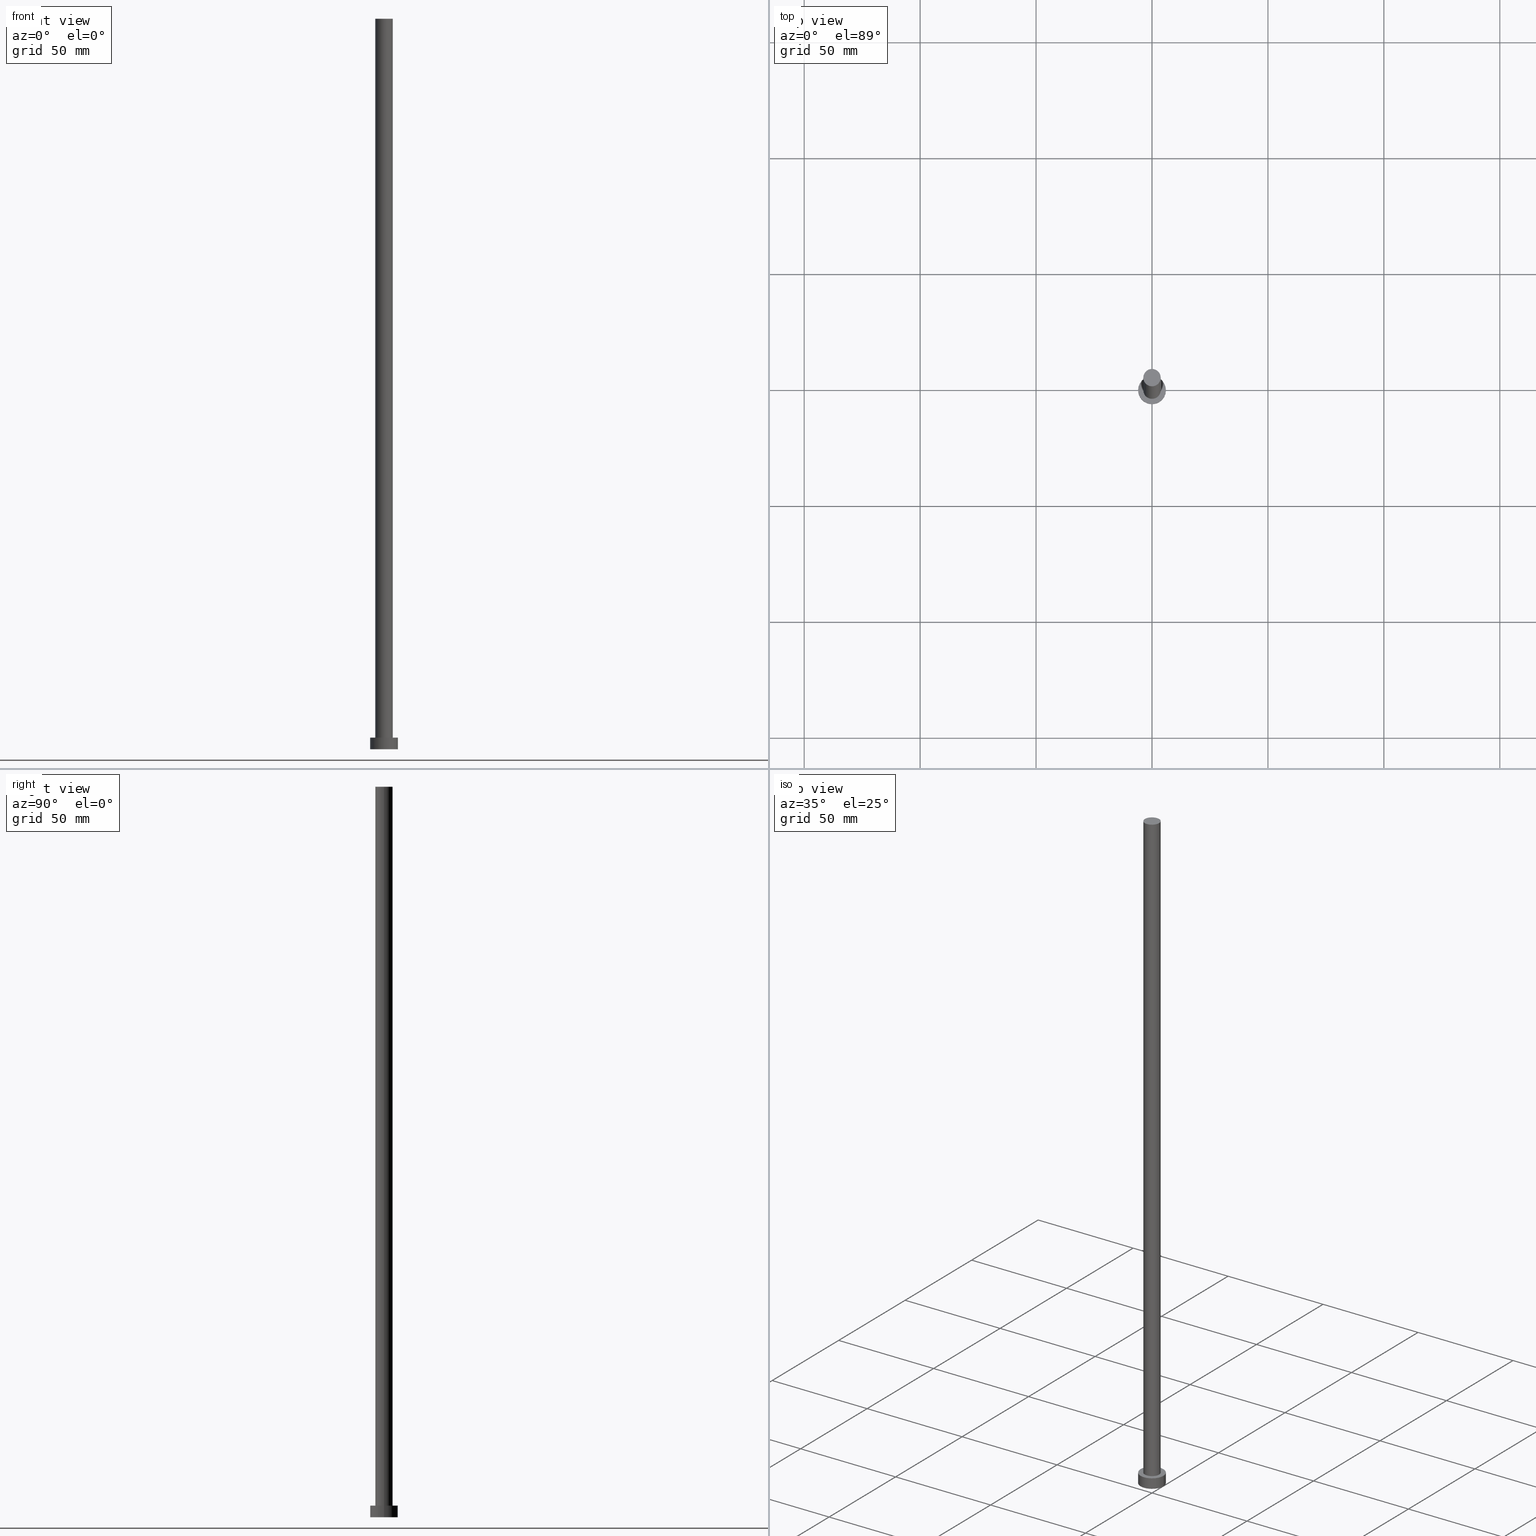
[diagram: canonical four-view strip — front | top / right | iso, engineering-drawing reading convention]
A machine part, canonical four-view strip (front | top / right | iso — engineering-drawing reading convention). The complete STEP part file that produces these views, byte-faithful:
ISO-10303-21;
HEADER;
FILE_DESCRIPTION (( 'STEP AP203' ),
    '1' );
FILE_NAME ('d177.STEP',
    '2023-02-12T11:21:20',
    ( '' ),
    ( '' ),
    'SwSTEP 2.0',
    'SolidWorks 2019',
    '' );
FILE_SCHEMA (( 'CONFIG_CONTROL_DESIGN' ));
ENDSEC;

DATA;
#1 = PERSON_AND_ORGANIZATION ( #26, #61 ) ;
#2 = DATE_AND_TIME ( #98, #172 ) ;
#3 = DIRECTION ( 'NONE',  ( 1.000000000000000000, 0.000000000000000000, 0.000000000000000000 ) ) ;
#4 = DIRECTION ( 'NONE',  ( 0.000000000000000000, 0.000000000000000000, 1.000000000000000000 ) ) ;
#5 = ADVANCED_FACE ( 'NONE', ( #38 ), #96, .F. ) ;
#6 = PLANE ( 'NONE',  #45 ) ;
#7 = ORIENTED_EDGE ( 'NONE', *, *, #240, .F. ) ;
#8 = EDGE_LOOP ( 'NONE', ( #93, #166 ) ) ;
#9 = VECTOR ( 'NONE', #217, 1000.000000000000000 ) ;
#10 = CARTESIAN_POINT ( 'NONE',  ( -6.000000000000000888, 0.000000000000000000, 5.000000000000000000 ) ) ;
#11 = ORIENTED_EDGE ( 'NONE', *, *, #201, .T. ) ;
#12 = DIRECTION ( 'NONE',  ( 0.000000000000000000, 0.000000000000000000, 1.000000000000000000 ) ) ;
#13 = CIRCLE ( 'NONE', #158, 6.000000000000000888 ) ;
#14 =( GEOMETRIC_REPRESENTATION_CONTEXT ( 3 ) GLOBAL_UNCERTAINTY_ASSIGNED_CONTEXT ( ( #71 ) ) GLOBAL_UNIT_ASSIGNED_CONTEXT ( ( #249, #131, #78 ) ) REPRESENTATION_CONTEXT ( 'NONE', 'WORKASPACE' ) );
#15 = EDGE_CURVE ( 'NONE', #247, #187, #219, .T. ) ;
#16 = CARTESIAN_POINT ( 'NONE',  ( -3.750000000000000000, 0.000000000000000000, 315.0000000000000000 ) ) ;
#17 = COORDINATED_UNIVERSAL_TIME_OFFSET ( 1, 0, .AHEAD. ) ;
#18 = PERSON_AND_ORGANIZATION_ROLE ( 'creator' ) ;
#19 = CARTESIAN_POINT ( 'NONE',  ( 0.000000000000000000, 0.000000000000000000, 5.000000000000000000 ) ) ;
#20 = SECURITY_CLASSIFICATION_LEVEL ( 'unclassified' ) ;
#21 = ORIENTED_EDGE ( 'NONE', *, *, #101, .F. ) ;
#22 = CARTESIAN_POINT ( 'NONE',  ( 0.000000000000000000, 0.000000000000000000, 5.000000000000000000 ) ) ;
#23 = VECTOR ( 'NONE', #75, 1000.000000000000000 ) ;
#24 = EDGE_CURVE ( 'NONE', #54, #187, #113, .T. ) ;
#25 = ORIENTED_EDGE ( 'NONE', *, *, #136, .T. ) ;
#26 = PERSON ( 'NEUR�EN�', 'NEUR�EN�', 'NEUR�EN�', ('NEUR�EN�'), ('NEUR�EN�'), ('NEUR�EN�') ) ;
#27 = LOCAL_TIME ( 12, 21, 20.00000000000000000, #85 ) ;
#28 = APPROVAL_STATUS ( 'not_yet_approved' ) ;
#29 = ORIENTED_EDGE ( 'NONE', *, *, #236, .T. ) ;
#30 = FACE_OUTER_BOUND ( 'NONE', #129, .T. ) ;
#31 = EDGE_LOOP ( 'NONE', ( #21, #140 ) ) ;
#32 = DIRECTION ( 'NONE',  ( 0.000000000000000000, 0.000000000000000000, 1.000000000000000000 ) ) ;
#33 = DIRECTION ( 'NONE',  ( 0.000000000000000000, 0.000000000000000000, 1.000000000000000000 ) ) ;
#34 = DATE_AND_TIME ( #200, #242 ) ;
#35 = APPROVAL_DATE_TIME ( #60, #73 ) ;
#36 = APPROVAL_PERSON_ORGANIZATION ( #1, #73, #159 ) ;
#37 = DIRECTION ( 'NONE',  ( 0.000000000000000000, 0.000000000000000000, 1.000000000000000000 ) ) ;
#38 = FACE_OUTER_BOUND ( 'NONE', #8, .T. ) ;
#39 = PERSON_AND_ORGANIZATION_ROLE ( 'classification_officer' ) ;
#40 = CC_DESIGN_PERSON_AND_ORGANIZATION_ASSIGNMENT ( #138, #39, ( #190 ) ) ;
#41 = ORIENTED_EDGE ( 'NONE', *, *, #240, .T. ) ;
#42 = PRODUCT ( 'd177', 'd177', '', ( #53 ) ) ;
#43 = DIRECTION ( 'NONE',  ( -0.000000000000000000, -0.000000000000000000, -1.000000000000000000 ) ) ;
#44 = AXIS2_PLACEMENT_3D ( 'NONE', #91, #77, #151 ) ;
#45 = AXIS2_PLACEMENT_3D ( 'NONE', #183, #87, #124 ) ;
#46 = CARTESIAN_POINT ( 'NONE',  ( 0.000000000000000000, 0.000000000000000000, 5.000000000000000000 ) ) ;
#47 = APPLICATION_CONTEXT ( 'configuration controlled 3d designs of mechanical parts and assemblies' ) ;
#48 = CARTESIAN_POINT ( 'NONE',  ( 6.000000000000000888, 7.347880794884120722E-16, 5.000000000000000000 ) ) ;
#49 = ORIENTED_EDGE ( 'NONE', *, *, #199, .T. ) ;
#50 = ORIENTED_EDGE ( 'NONE', *, *, #123, .F. ) ;
#51 = ORIENTED_EDGE ( 'NONE', *, *, #15, .T. ) ;
#52 = EDGE_CURVE ( 'NONE', #54, #191, #76, .T. ) ;
#53 = MECHANICAL_CONTEXT ( 'NONE', #47, 'mechanical' ) ;
#54 = VERTEX_POINT ( 'NONE', #16 ) ;
#55 = CLOSED_SHELL ( 'NONE', ( #221, #215, #162, #118, #5, #227, #127 ) ) ;
#56 = DIRECTION ( 'NONE',  ( 1.000000000000000000, 0.000000000000000000, -0.000000000000000000 ) ) ;
#57 = CC_DESIGN_DATE_AND_TIME_ASSIGNMENT ( #100, #178, ( #190 ) ) ;
#58 = CYLINDRICAL_SURFACE ( 'NONE', #254, 3.750000000000000000 ) ;
#59 = CARTESIAN_POINT ( 'NONE',  ( 6.000000000000000888, 7.347880794884120722E-16, 5.000000000000000000 ) ) ;
#60 = DATE_AND_TIME ( #239, #27 ) ;
#61 = ORGANIZATION ( 'NEUR�EN�', 'NEUR�EN�', '' ) ;
#62 = PRODUCT_RELATED_PRODUCT_CATEGORY ( 'detail', '', ( #42 ) ) ;
#63 = EDGE_LOOP ( 'NONE', ( #255, #41 ) ) ;
#64 = DIRECTION ( 'NONE',  ( 0.000000000000000000, 0.000000000000000000, 1.000000000000000000 ) ) ;
#65 = DIRECTION ( 'NONE',  ( 1.000000000000000000, 0.000000000000000000, 0.000000000000000000 ) ) ;
#66 = DIRECTION ( 'NONE',  ( 1.000000000000000000, 0.000000000000000000, -0.000000000000000000 ) ) ;
#67 = FACE_OUTER_BOUND ( 'NONE', #148, .T. ) ;
#68 = APPROVAL_PERSON_ORGANIZATION ( #119, #106, #141 ) ;
#69 = AXIS2_PLACEMENT_3D ( 'NONE', #224, #37, #66 ) ;
#70 = CARTESIAN_POINT ( 'NONE',  ( 0.000000000000000000, 0.000000000000000000, 315.0000000000000000 ) ) ;
#71 = UNCERTAINTY_MEASURE_WITH_UNIT (LENGTH_MEASURE( 1.000000000000000082E-05 ), #249, 'distance_accuracy_value', 'NONE');
#72 = CIRCLE ( 'NONE', #114, 6.000000000000000888 ) ;
#73 = APPROVAL ( #230, 'NEUR�EN�' ) ;
#74 = CARTESIAN_POINT ( 'NONE',  ( 0.000000000000000000, 0.000000000000000000, 0.000000000000000000 ) ) ;
#75 = DIRECTION ( 'NONE',  ( -0.000000000000000000, -0.000000000000000000, -1.000000000000000000 ) ) ;
#76 = CIRCLE ( 'NONE', #82, 3.750000000000000000 ) ;
#77 = DIRECTION ( 'NONE',  ( 0.000000000000000000, 0.000000000000000000, 1.000000000000000000 ) ) ;
#78 =( NAMED_UNIT ( * ) SI_UNIT ( $, .STERADIAN. ) SOLID_ANGLE_UNIT ( ) );
#79 = LINE ( 'NONE', #59, #137 ) ;
#80 = CALENDAR_DATE ( 2023, 12, 2 ) ;
#81 = CC_DESIGN_APPROVAL ( #132, ( #179 ) ) ;
#82 = AXIS2_PLACEMENT_3D ( 'NONE', #170, #32, #196 ) ;
#83 = ADVANCED_BREP_SHAPE_REPRESENTATION ( 'd177', ( #177, #145 ), #14 ) ;
#84 = LINE ( 'NONE', #157, #195 ) ;
#85 = COORDINATED_UNIVERSAL_TIME_OFFSET ( 1, 0, .AHEAD. ) ;
#86 = CC_DESIGN_SECURITY_CLASSIFICATION ( #190, ( #164 ) ) ;
#87 = DIRECTION ( 'NONE',  ( 0.000000000000000000, 0.000000000000000000, 1.000000000000000000 ) ) ;
#88 = CARTESIAN_POINT ( 'NONE',  ( 0.000000000000000000, 0.000000000000000000, 0.000000000000000000 ) ) ;
#89 = ORIENTED_EDGE ( 'NONE', *, *, #136, .F. ) ;
#90 = PLANE ( 'NONE',  #69 ) ;
#91 = CARTESIAN_POINT ( 'NONE',  ( 0.000000000000000000, 0.000000000000000000, 315.0000000000000000 ) ) ;
#92 = CC_DESIGN_PERSON_AND_ORGANIZATION_ASSIGNMENT ( #175, #18, ( #164 ) ) ;
#93 = ORIENTED_EDGE ( 'NONE', *, *, #209, .F. ) ;
#94 = ORIENTED_EDGE ( 'NONE', *, *, #24, .F. ) ;
#95 = CARTESIAN_POINT ( 'NONE',  ( 0.000000000000000000, 0.000000000000000000, 315.0000000000000000 ) ) ;
#96 = PLANE ( 'NONE',  #173 ) ;
#97 = DIRECTION ( 'NONE',  ( -1.000000000000000000, 0.000000000000000000, 0.000000000000000000 ) ) ;
#98 = CALENDAR_DATE ( 2023, 12, 2 ) ;
#99 = EDGE_CURVE ( 'NONE', #235, #107, #79, .T. ) ;
#100 = DATE_AND_TIME ( #102, #160 ) ;
#101 = EDGE_CURVE ( 'NONE', #187, #247, #128, .T. ) ;
#102 = CALENDAR_DATE ( 2023, 12, 2 ) ;
#103 = CARTESIAN_POINT ( 'NONE',  ( -3.750000000000000000, 0.000000000000000000, 5.000000000000000000 ) ) ;
#104 = CC_DESIGN_DATE_AND_TIME_ASSIGNMENT ( #2, #171, ( #179 ) ) ;
#105 = FACE_BOUND ( 'NONE', #31, .T. ) ;
#106 = APPROVAL ( #252, 'NEUR�EN�' ) ;
#107 = VERTEX_POINT ( 'NONE', #139 ) ;
#108 = AXIS2_PLACEMENT_3D ( 'NONE', #46, #208, #165 ) ;
#109 = APPROVAL_ROLE ( '' ) ;
#110 = FACE_OUTER_BOUND ( 'NONE', #122, .T. ) ;
#111 = ORIENTED_EDGE ( 'NONE', *, *, #101, .T. ) ;
#112 = DESIGN_CONTEXT ( 'detailed design', #205, 'design' ) ;
#113 = LINE ( 'NONE', #153, #9 ) ;
#114 = AXIS2_PLACEMENT_3D ( 'NONE', #88, #4, #65 ) ;
#115 = AXIS2_PLACEMENT_3D ( 'NONE', #22, #43, #203 ) ;
#116 = APPROVAL_PERSON_ORGANIZATION ( #210, #132, #109 ) ;
#117 = PERSON_AND_ORGANIZATION_ROLE ( 'design_owner' ) ;
#118 = ADVANCED_FACE ( 'NONE', ( #105, #182 ), #6, .T. ) ;
#119 = PERSON_AND_ORGANIZATION ( #26, #61 ) ;
#120 = SHAPE_DEFINITION_REPRESENTATION ( #229, #83 ) ;
#121 = CYLINDRICAL_SURFACE ( 'NONE', #115, 6.000000000000000888 ) ;
#122 = EDGE_LOOP ( 'NONE', ( #225, #193, #143, #111 ) ) ;
#123 = EDGE_CURVE ( 'NONE', #231, #235, #13, .T. ) ;
#124 = DIRECTION ( 'NONE',  ( 1.000000000000000000, 0.000000000000000000, -0.000000000000000000 ) ) ;
#125 = CARTESIAN_POINT ( 'NONE',  ( -6.000000000000000888, 0.000000000000000000, 0.000000000000000000 ) ) ;
#126 = EDGE_LOOP ( 'NONE', ( #212, #50, #29, #149 ) ) ;
#127 = ADVANCED_FACE ( 'NONE', ( #244 ), #90, .T. ) ;
#128 = CIRCLE ( 'NONE', #155, 3.750000000000000000 ) ;
#129 = EDGE_LOOP ( 'NONE', ( #7, #49, #51, #94 ) ) ;
#130 = PERSON_AND_ORGANIZATION ( #26, #61 ) ;
#131 =( NAMED_UNIT ( * ) PLANE_ANGLE_UNIT ( ) SI_UNIT ( $, .RADIAN. ) );
#132 = APPROVAL ( #28, 'NEUR�EN�' ) ;
#133 = DIRECTION ( 'NONE',  ( -0.000000000000000000, -0.000000000000000000, -1.000000000000000000 ) ) ;
#134 = PERSON_AND_ORGANIZATION ( #26, #61 ) ;
#135 = APPROVAL_DATE_TIME ( #34, #106 ) ;
#136 = EDGE_CURVE ( 'NONE', #235, #231, #189, .T. ) ;
#137 = VECTOR ( 'NONE', #133, 1000.000000000000000 ) ;
#138 = PERSON_AND_ORGANIZATION ( #26, #61 ) ;
#139 = CARTESIAN_POINT ( 'NONE',  ( 6.000000000000000888, 7.347880794884120722E-16, 0.000000000000000000 ) ) ;
#140 = ORIENTED_EDGE ( 'NONE', *, *, #15, .F. ) ;
#141 = APPROVAL_ROLE ( '' ) ;
#142 = FACE_OUTER_BOUND ( 'NONE', #126, .T. ) ;
#143 = ORIENTED_EDGE ( 'NONE', *, *, #24, .T. ) ;
#144 = DIRECTION ( 'NONE',  ( 0.000000000000000000, 0.000000000000000000, 1.000000000000000000 ) ) ;
#145 = AXIS2_PLACEMENT_3D ( 'NONE', #74, #218, #248 ) ;
#146 = DIRECTION ( 'NONE',  ( 0.000000000000000000, 0.000000000000000000, 1.000000000000000000 ) ) ;
#147 = CC_DESIGN_PERSON_AND_ORGANIZATION_ASSIGNMENT ( #156, #228, ( #164 ) ) ;
#148 = EDGE_LOOP ( 'NONE', ( #89, #243, #11, #167 ) ) ;
#149 = ORIENTED_EDGE ( 'NONE', *, *, #209, .T. ) ;
#150 = CC_DESIGN_PERSON_AND_ORGANIZATION_ASSIGNMENT ( #134, #220, ( #179 ) ) ;
#151 = DIRECTION ( 'NONE',  ( 1.000000000000000000, 0.000000000000000000, 0.000000000000000000 ) ) ;
#152 = DIRECTION ( 'NONE',  ( -0.000000000000000000, -0.000000000000000000, -1.000000000000000000 ) ) ;
#153 = CARTESIAN_POINT ( 'NONE',  ( -3.750000000000000000, 0.000000000000000000, 315.0000000000000000 ) ) ;
#154 = COORDINATED_UNIVERSAL_TIME_OFFSET ( 1, 0, .AHEAD. ) ;
#155 = AXIS2_PLACEMENT_3D ( 'NONE', #253, #64, #180 ) ;
#156 = PERSON_AND_ORGANIZATION ( #26, #61 ) ;
#157 = CARTESIAN_POINT ( 'NONE',  ( 3.750000000000000000, 4.592425496802573972E-16, 315.0000000000000000 ) ) ;
#158 = AXIS2_PLACEMENT_3D ( 'NONE', #184, #232, #3 ) ;
#159 = APPROVAL_ROLE ( '' ) ;
#160 = LOCAL_TIME ( 12, 21, 20.00000000000000000, #154 ) ;
#161 = DIRECTION ( 'NONE',  ( 1.000000000000000000, 0.000000000000000000, 0.000000000000000000 ) ) ;
#162 = ADVANCED_FACE ( 'NONE', ( #142 ), #121, .T. ) ;
#163 = CARTESIAN_POINT ( 'NONE',  ( 0.000000000000000000, 0.000000000000000000, 0.000000000000000000 ) ) ;
#164 = PRODUCT_DEFINITION_FORMATION_WITH_SPECIFIED_SOURCE ( 'LIBOVOLN�', '', #42, .NOT_KNOWN. ) ;
#165 = DIRECTION ( 'NONE',  ( -1.000000000000000000, 0.000000000000000000, 0.000000000000000000 ) ) ;
#166 = ORIENTED_EDGE ( 'NONE', *, *, #201, .F. ) ;
#167 = ORIENTED_EDGE ( 'NONE', *, *, #236, .F. ) ;
#168 = AXIS2_PLACEMENT_3D ( 'NONE', #70, #152, #216 ) ;
#169 = DIRECTION ( 'NONE',  ( -0.000000000000000000, -0.000000000000000000, -1.000000000000000000 ) ) ;
#170 = CARTESIAN_POINT ( 'NONE',  ( 0.000000000000000000, 0.000000000000000000, 315.0000000000000000 ) ) ;
#171 = DATE_TIME_ROLE ( 'creation_date' ) ;
#172 = LOCAL_TIME ( 12, 21, 20.00000000000000000, #223 ) ;
#173 = AXIS2_PLACEMENT_3D ( 'NONE', #250, #33, #56 ) ;
#174 = COORDINATED_UNIVERSAL_TIME_OFFSET ( 1, 0, .AHEAD. ) ;
#175 = PERSON_AND_ORGANIZATION ( #26, #61 ) ;
#176 = CARTESIAN_POINT ( 'NONE',  ( 3.750000000000000000, 4.592425496802573972E-16, 315.0000000000000000 ) ) ;
#177 = MANIFOLD_SOLID_BREP ( 'P�idat vysunut�m3', #55 ) ;
#178 = DATE_TIME_ROLE ( 'classification_date' ) ;
#179 = PRODUCT_DEFINITION ( 'NEZN�M�', '', #164, #112 ) ;
#180 = DIRECTION ( 'NONE',  ( 1.000000000000000000, 0.000000000000000000, 0.000000000000000000 ) ) ;
#181 = CIRCLE ( 'NONE', #233, 6.000000000000000888 ) ;
#182 = FACE_OUTER_BOUND ( 'NONE', #214, .T. ) ;
#183 = CARTESIAN_POINT ( 'NONE',  ( 0.000000000000000000, 0.000000000000000000, 5.000000000000000000 ) ) ;
#184 = CARTESIAN_POINT ( 'NONE',  ( 0.000000000000000000, 0.000000000000000000, 5.000000000000000000 ) ) ;
#185 = AXIS2_PLACEMENT_3D ( 'NONE', #213, #12, #198 ) ;
#186 = APPLICATION_PROTOCOL_DEFINITION ( 'international standard', 'config_control_design', 1994, #47 ) ;
#187 = VERTEX_POINT ( 'NONE', #103 ) ;
#188 = LOCAL_TIME ( 12, 21, 20.00000000000000000, #17 ) ;
#189 = CIRCLE ( 'NONE', #211, 6.000000000000000888 ) ;
#190 = SECURITY_CLASSIFICATION ( '', '', #20 ) ;
#191 = VERTEX_POINT ( 'NONE', #176 ) ;
#192 = CC_DESIGN_PERSON_AND_ORGANIZATION_ASSIGNMENT ( #130, #117, ( #42 ) ) ;
#193 = ORIENTED_EDGE ( 'NONE', *, *, #52, .F. ) ;
#194 = LINE ( 'NONE', #10, #23 ) ;
#195 = VECTOR ( 'NONE', #241, 1000.000000000000000 ) ;
#196 = DIRECTION ( 'NONE',  ( 1.000000000000000000, 0.000000000000000000, 0.000000000000000000 ) ) ;
#197 = APPLICATION_PROTOCOL_DEFINITION ( 'international standard', 'config_control_design', 1994, #205 ) ;
#198 = DIRECTION ( 'NONE',  ( 1.000000000000000000, 0.000000000000000000, 0.000000000000000000 ) ) ;
#199 = EDGE_CURVE ( 'NONE', #191, #247, #84, .T. ) ;
#200 = CALENDAR_DATE ( 2023, 12, 2 ) ;
#201 = EDGE_CURVE ( 'NONE', #107, #237, #72, .T. ) ;
#202 = APPROVAL_DATE_TIME ( #222, #132 ) ;
#203 = DIRECTION ( 'NONE',  ( -1.000000000000000000, 0.000000000000000000, 0.000000000000000000 ) ) ;
#204 = ORIENTED_EDGE ( 'NONE', *, *, #123, .T. ) ;
#205 = APPLICATION_CONTEXT ( 'configuration controlled 3d designs of mechanical parts and assemblies' ) ;
#206 = CC_DESIGN_APPROVAL ( #106, ( #164 ) ) ;
#207 = DIRECTION ( 'NONE',  ( 1.000000000000000000, 0.000000000000000000, 0.000000000000000000 ) ) ;
#208 = DIRECTION ( 'NONE',  ( -0.000000000000000000, -0.000000000000000000, -1.000000000000000000 ) ) ;
#209 = EDGE_CURVE ( 'NONE', #237, #107, #181, .T. ) ;
#210 = PERSON_AND_ORGANIZATION ( #26, #61 ) ;
#211 = AXIS2_PLACEMENT_3D ( 'NONE', #19, #146, #161 ) ;
#212 = ORIENTED_EDGE ( 'NONE', *, *, #99, .F. ) ;
#213 = CARTESIAN_POINT ( 'NONE',  ( 0.000000000000000000, 0.000000000000000000, 5.000000000000000000 ) ) ;
#214 = EDGE_LOOP ( 'NONE', ( #204, #25 ) ) ;
#215 = ADVANCED_FACE ( 'NONE', ( #67 ), #234, .T. ) ;
#216 = DIRECTION ( 'NONE',  ( -1.000000000000000000, 0.000000000000000000, 0.000000000000000000 ) ) ;
#217 = DIRECTION ( 'NONE',  ( -0.000000000000000000, -0.000000000000000000, -1.000000000000000000 ) ) ;
#218 = DIRECTION ( 'NONE',  ( 0.000000000000000000, 0.000000000000000000, 1.000000000000000000 ) ) ;
#219 = CIRCLE ( 'NONE', #185, 3.750000000000000000 ) ;
#220 = PERSON_AND_ORGANIZATION_ROLE ( 'creator' ) ;
#221 = ADVANCED_FACE ( 'NONE', ( #30 ), #246, .T. ) ;
#222 = DATE_AND_TIME ( #80, #188 ) ;
#223 = COORDINATED_UNIVERSAL_TIME_OFFSET ( 1, 0, .AHEAD. ) ;
#224 = CARTESIAN_POINT ( 'NONE',  ( 0.000000000000000000, 0.000000000000000000, 315.0000000000000000 ) ) ;
#225 = ORIENTED_EDGE ( 'NONE', *, *, #199, .F. ) ;
#226 = CC_DESIGN_APPROVAL ( #73, ( #190 ) ) ;
#227 = ADVANCED_FACE ( 'NONE', ( #110 ), #58, .T. ) ;
#228 = PERSON_AND_ORGANIZATION_ROLE ( 'design_supplier' ) ;
#229 = PRODUCT_DEFINITION_SHAPE ( 'NONE', 'NONE',  #179 ) ;
#230 = APPROVAL_STATUS ( 'not_yet_approved' ) ;
#231 = VERTEX_POINT ( 'NONE', #238 ) ;
#232 = DIRECTION ( 'NONE',  ( 0.000000000000000000, 0.000000000000000000, 1.000000000000000000 ) ) ;
#233 = AXIS2_PLACEMENT_3D ( 'NONE', #163, #144, #207 ) ;
#234 = CYLINDRICAL_SURFACE ( 'NONE', #108, 6.000000000000000888 ) ;
#235 = VERTEX_POINT ( 'NONE', #48 ) ;
#236 = EDGE_CURVE ( 'NONE', #231, #237, #194, .T. ) ;
#237 = VERTEX_POINT ( 'NONE', #125 ) ;
#238 = CARTESIAN_POINT ( 'NONE',  ( -6.000000000000000888, 0.000000000000000000, 5.000000000000000000 ) ) ;
#239 = CALENDAR_DATE ( 2023, 12, 2 ) ;
#240 = EDGE_CURVE ( 'NONE', #191, #54, #245, .T. ) ;
#241 = DIRECTION ( 'NONE',  ( -0.000000000000000000, -0.000000000000000000, -1.000000000000000000 ) ) ;
#242 = LOCAL_TIME ( 12, 21, 20.00000000000000000, #174 ) ;
#243 = ORIENTED_EDGE ( 'NONE', *, *, #99, .T. ) ;
#244 = FACE_OUTER_BOUND ( 'NONE', #63, .T. ) ;
#245 = CIRCLE ( 'NONE', #44, 3.750000000000000000 ) ;
#246 = CYLINDRICAL_SURFACE ( 'NONE', #168, 3.750000000000000000 ) ;
#247 = VERTEX_POINT ( 'NONE', #251 ) ;
#248 = DIRECTION ( 'NONE',  ( 1.000000000000000000, 0.000000000000000000, 0.000000000000000000 ) ) ;
#249 =( LENGTH_UNIT ( ) NAMED_UNIT ( * ) SI_UNIT ( .MILLI., .METRE. ) );
#250 = CARTESIAN_POINT ( 'NONE',  ( 0.000000000000000000, 0.000000000000000000, 0.000000000000000000 ) ) ;
#251 = CARTESIAN_POINT ( 'NONE',  ( 3.750000000000000000, 4.592425496802573972E-16, 5.000000000000000000 ) ) ;
#252 = APPROVAL_STATUS ( 'not_yet_approved' ) ;
#253 = CARTESIAN_POINT ( 'NONE',  ( 0.000000000000000000, 0.000000000000000000, 5.000000000000000000 ) ) ;
#254 = AXIS2_PLACEMENT_3D ( 'NONE', #95, #169, #97 ) ;
#255 = ORIENTED_EDGE ( 'NONE', *, *, #52, .T. ) ;
ENDSEC;
END-ISO-10303-21;
